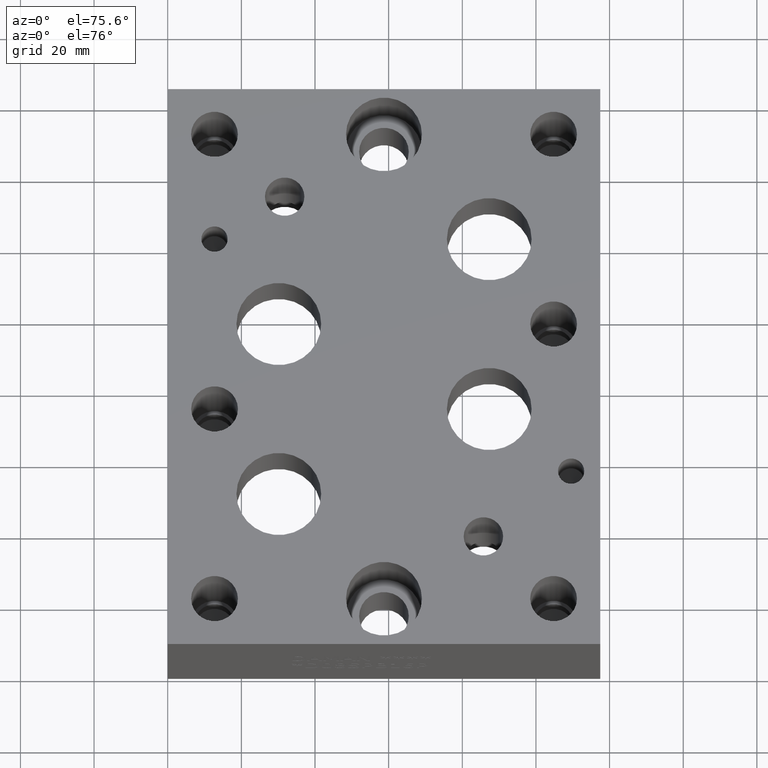
[diagram: clean part render]
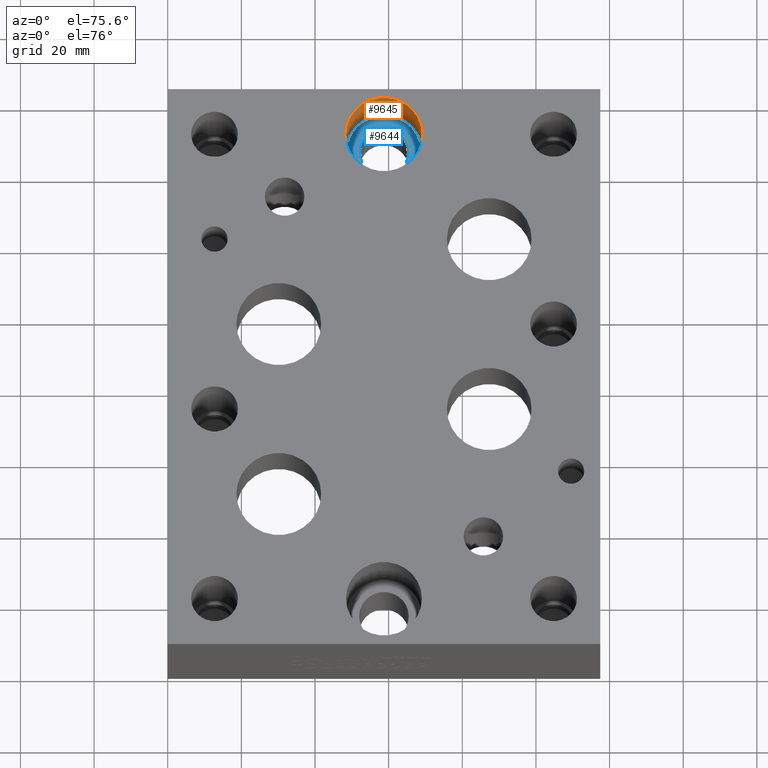
[diagram: same view with the hole feature highlighted: cylindrical wall and planar end face, labeled with their STEP entity ids]
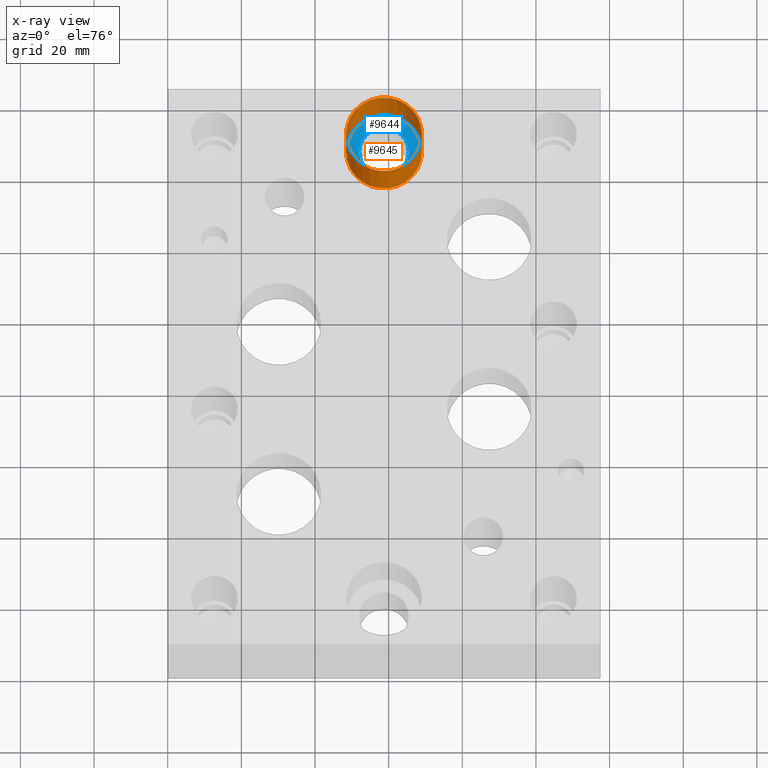
[diagram: x-ray of the same camera — body ghosted, the hole faces saturated]
A machine part, auxiliary view. The highlighted faces form one hole feature of diameter 20.6248 mm: the cylindrical wall (entity #9645, orange) and its adjacent planar end face (entity #9644, blue) — they share a circular edge in the B-rep.
The next image is the same camera in x-ray (body ghosted, the hole faces saturated) — the bore reads through the body.
Wall:
#24=CYLINDRICAL_SURFACE('',#10062,10.3124);
#104=CIRCLE('',#10059,10.3124);
#105=CIRCLE('',#10060,10.3124);
#107=CIRCLE('',#10063,10.3124);
#108=CIRCLE('',#10064,10.3124);
#1106=FACE_OUTER_BOUND('',#1653,.T.);
#1653=EDGE_LOOP('',(#8240,#8241,#8242,#8243,#8244,#8245));
#2624=LINE('',#16310,#3564);
#3564=VECTOR('',#11803,10.3124);
#4419=VERTEX_POINT('',#16299);
#4420=VERTEX_POINT('',#16300);
#4422=VERTEX_POINT('',#16306);
#4423=VERTEX_POINT('',#16307);
#5718=EDGE_CURVE('',#4419,#4420,#104,.T.);
#5719=EDGE_CURVE('',#4420,#4419,#105,.T.);
#5721=EDGE_CURVE('',#4422,#4423,#107,.T.);
#5722=EDGE_CURVE('',#4423,#4422,#108,.T.);
#5723=EDGE_CURVE('',#4423,#4420,#2624,.T.);
#8240=ORIENTED_EDGE('',*,*,#5721,.F.);
#8241=ORIENTED_EDGE('',*,*,#5722,.F.);
#8242=ORIENTED_EDGE('',*,*,#5723,.T.);
#8243=ORIENTED_EDGE('',*,*,#5718,.F.);
#8244=ORIENTED_EDGE('',*,*,#5719,.F.);
#8245=ORIENTED_EDGE('',*,*,#5723,.F.);
#9645=ADVANCED_FACE('',(#1106),#24,.F.);
#10059=AXIS2_PLACEMENT_3D('',#16301,#11791,#11792);
#10060=AXIS2_PLACEMENT_3D('',#16302,#11793,#11794);
#10062=AXIS2_PLACEMENT_3D('',#16305,#11797,#11798);
#10063=AXIS2_PLACEMENT_3D('',#16308,#11799,#11800);
#10064=AXIS2_PLACEMENT_3D('',#16309,#11801,#11802);
#11791=DIRECTION('center_axis',(0.,0.,1.));
#11792=DIRECTION('ref_axis',(1.,0.,0.));
#11793=DIRECTION('center_axis',(0.,0.,1.));
#11794=DIRECTION('ref_axis',(1.,0.,0.));
#11797=DIRECTION('center_axis',(0.,0.,1.));
#11798=DIRECTION('ref_axis',(1.,0.,0.));
#11799=DIRECTION('center_axis',(0.,0.,-1.));
#11800=DIRECTION('ref_axis',(1.,0.,0.));
#11801=DIRECTION('center_axis',(0.,0.,-1.));
#11802=DIRECTION('ref_axis',(1.,0.,0.));
#11803=DIRECTION('',(0.,0.,-1.));
#16299=CARTESIAN_POINT('',(69.0372,142.875,19.05));
#16300=CARTESIAN_POINT('',(48.4124,142.875,19.05));
#16301=CARTESIAN_POINT('Origin',(58.7248,142.875,19.05));
#16302=CARTESIAN_POINT('Origin',(58.7248,142.875,19.05));
#16305=CARTESIAN_POINT('Origin',(58.7248,142.875,28.575));
#16306=CARTESIAN_POINT('',(69.0372,142.875,38.1));
#16307=CARTESIAN_POINT('',(48.4124,142.875,38.1));
#16308=CARTESIAN_POINT('Origin',(58.7248,142.875,38.1));
#16309=CARTESIAN_POINT('Origin',(58.7248,142.875,38.1));
#16310=CARTESIAN_POINT('',(48.4124,142.875,28.575));
End face:
#104=CIRCLE('',#10059,10.3124);
#105=CIRCLE('',#10060,10.3124);
#106=CIRCLE('',#10061,6.7437);
#231=FACE_BOUND('',#1652,.T.);
#1105=FACE_OUTER_BOUND('',#1651,.T.);
#1651=EDGE_LOOP('',(#8237,#8238));
#1652=EDGE_LOOP('',(#8239));
#4419=VERTEX_POINT('',#16299);
#4420=VERTEX_POINT('',#16300);
#4421=VERTEX_POINT('',#16303);
#5718=EDGE_CURVE('',#4419,#4420,#104,.T.);
#5719=EDGE_CURVE('',#4420,#4419,#105,.T.);
#5720=EDGE_CURVE('',#4421,#4421,#106,.T.);
#8237=ORIENTED_EDGE('',*,*,#5718,.T.);
#8238=ORIENTED_EDGE('',*,*,#5719,.T.);
#8239=ORIENTED_EDGE('',*,*,#5720,.F.);
#8775=PLANE('',#10058);
#9644=ADVANCED_FACE('',(#1105,#231),#8775,.T.);
#10058=AXIS2_PLACEMENT_3D('',#16298,#11789,#11790);
#10059=AXIS2_PLACEMENT_3D('',#16301,#11791,#11792);
#10060=AXIS2_PLACEMENT_3D('',#16302,#11793,#11794);
#10061=AXIS2_PLACEMENT_3D('',#16304,#11795,#11796);
#11789=DIRECTION('center_axis',(0.,0.,1.));
#11790=DIRECTION('ref_axis',(1.,0.,0.));
#11791=DIRECTION('center_axis',(0.,0.,1.));
#11792=DIRECTION('ref_axis',(1.,0.,0.));
#11793=DIRECTION('center_axis',(0.,0.,1.));
#11794=DIRECTION('ref_axis',(1.,0.,0.));
#11795=DIRECTION('center_axis',(0.,0.,1.));
#11796=DIRECTION('ref_axis',(1.,0.,0.));
#16298=CARTESIAN_POINT('Origin',(58.7248,142.875,19.05));
#16299=CARTESIAN_POINT('',(69.0372,142.875,19.05));
#16300=CARTESIAN_POINT('',(48.4124,142.875,19.05));
#16301=CARTESIAN_POINT('Origin',(58.7248,142.875,19.05));
#16302=CARTESIAN_POINT('Origin',(58.7248,142.875,19.05));
#16303=CARTESIAN_POINT('',(51.9811,142.875,19.05));
#16304=CARTESIAN_POINT('Origin',(58.7248,142.875,19.05));